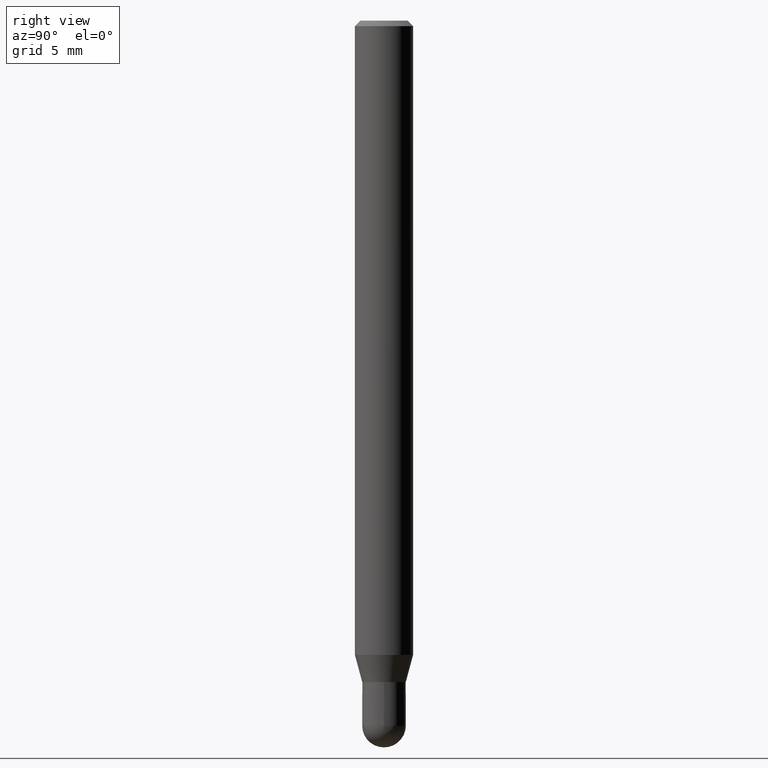
[diagram: clean part render]
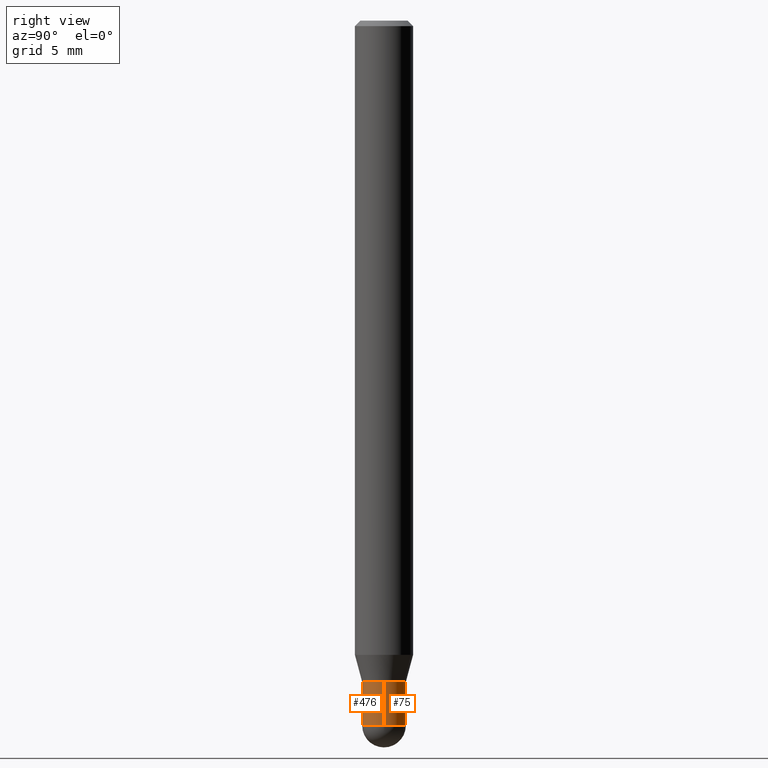
[diagram: same view with one multi-face feature highlighted, each face labeled with its STEP entity id]
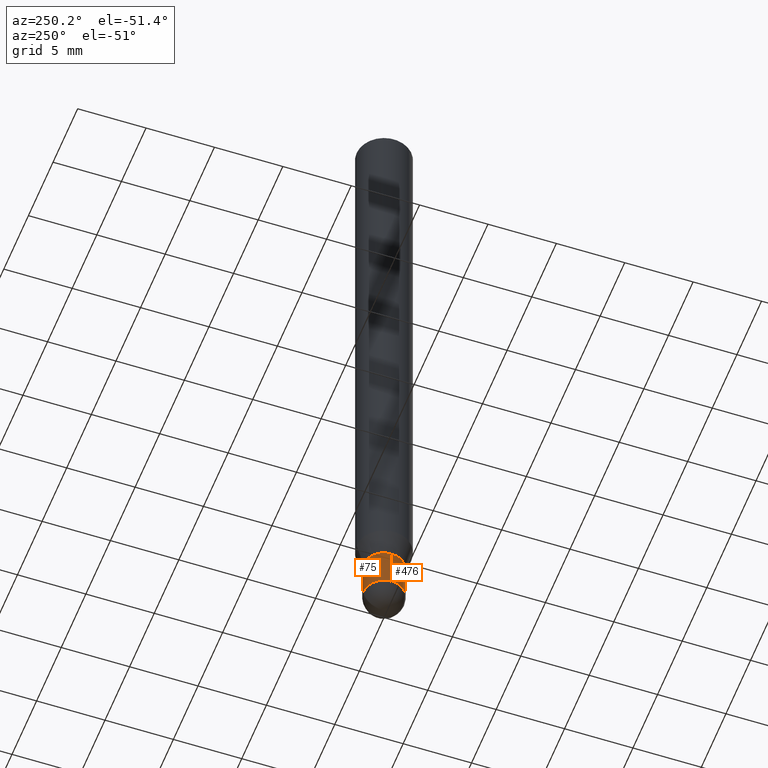
[diagram: same view with one multi-face feature highlighted, each face labeled with its STEP entity id]
A machine part, right view. The highlighted faces form ONE feature: a constant-radius fillet chain: 2 tangent blend faces with common blend radius 1.4999 mm. The faces share edges in the B-rep.
A second angle (auxiliary view) of the same feature is appended — it is thin or edge-on in the first view.
Their STEP definitions:
[1] entity #476 (Cylinder):
#3 = CIRCLE ( 'NONE', #26, 0.05904999999999999138 ) ;
#8 = DIRECTION ( 'NONE',  ( 1.000000000000000000, -6.982962677686266711E-15, 4.876176775795936353E-29 ) ) ;
#14 = CARTESIAN_POINT ( 'NONE',  ( 4.380568272519435501E-29, -6.254290522269726388E-15, -1.791300000000000114 ) ) ;
#19 = VECTOR ( 'NONE', #60, 39.37007874015748143 ) ;
#26 = AXIS2_PLACEMENT_3D ( 'NONE', #512, #148, #471 ) ;
#44 = ORIENTED_EDGE ( 'NONE', *, *, #72, .T. ) ;
#58 = ORIENTED_EDGE ( 'NONE', *, *, #301, .T. ) ;
#60 = DIRECTION ( 'NONE',  ( -2.445468806185136877E-29, 3.491481338843145188E-15, 1.000000000000000000 ) ) ;
#64 = LINE ( 'NONE', #265, #19 ) ;
#65 = VERTEX_POINT ( 'NONE', #422 ) ;
#72 = EDGE_CURVE ( 'NONE', #318, #394, #389, .T. ) ;
#85 = ORIENTED_EDGE ( 'NONE', *, *, #188, .F. ) ;
#86 = EDGE_LOOP ( 'NONE', ( #478, #58, #44, #164, #85 ) ) ;
#95 = DIRECTION ( 'NONE',  ( 1.000000000000000000, -6.982962677686273810E-15, 0.000000000000000000 ) ) ;
#104 = AXIS2_PLACEMENT_3D ( 'NONE', #162, #283, #8 ) ;
#110 = CARTESIAN_POINT ( 'NONE',  ( -4.195754854662919641E-16, -0.05905000000000660415, -1.909449999999999870 ) ) ;
#148 = DIRECTION ( 'NONE',  ( -2.445468806185136597E-29, 3.491481338843145583E-15, 1.000000000000000000 ) ) ;
#149 = CIRCLE ( 'NONE', #338, 0.05904999999999999832 ) ;
#152 = CARTESIAN_POINT ( 'NONE',  ( -0.05904999999999999832, -6.040974296895546811E-15, -1.791300000000000114 ) ) ;
#162 = CARTESIAN_POINT ( 'NONE',  ( 0.000000000000000000, 0.000000000000000000, 0.000000000000000000 ) ) ;
#164 = ORIENTED_EDGE ( 'NONE', *, *, #404, .T. ) ;
#168 = EDGE_CURVE ( 'NONE', #65, #337, #64, .T. ) ;
#175 = DIRECTION ( 'NONE',  ( -2.445468806185136597E-29, 3.491481338843145583E-15, 1.000000000000000000 ) ) ;
#188 = EDGE_CURVE ( 'NONE', #337, #357, #149, .T. ) ;
#226 = CARTESIAN_POINT ( 'NONE',  ( 0.05904999999999999832, -4.123439461173740327E-16, 2.879382386107500220E-30 ) ) ;
#240 = CYLINDRICAL_SURFACE ( 'NONE', #104, 0.05904999999999999832 ) ;
#265 = CARTESIAN_POINT ( 'NONE',  ( -0.05904999999999999832, 4.195754854663391478E-16, -2.904631170795521892E-30 ) ) ;
#267 = LINE ( 'NONE', #226, #506 ) ;
#283 = DIRECTION ( 'NONE',  ( -2.445468806185136597E-29, 3.491481338843145583E-15, 1.000000000000000000 ) ) ;
#292 = CARTESIAN_POINT ( 'NONE',  ( 4.669500411970209334E-29, -6.666809042454044642E-15, -1.909450000000000092 ) ) ;
#301 = EDGE_CURVE ( 'NONE', #65, #318, #3, .T. ) ;
#303 = CARTESIAN_POINT ( 'NONE',  ( 0.05904999999999999138, -6.872893728479260435E-15, -1.909450000000000092 ) ) ;
#317 = FACE_OUTER_BOUND ( 'NONE', #86, .T. ) ;
#318 = VERTEX_POINT ( 'NONE', #110 ) ;
#337 = VERTEX_POINT ( 'NONE', #152 ) ;
#338 = AXIS2_PLACEMENT_3D ( 'NONE', #14, #175, #490 ) ;
#357 = VERTEX_POINT ( 'NONE', #427 ) ;
#374 = DIRECTION ( 'NONE',  ( -2.445468806185136597E-29, 3.491481338843145583E-15, 1.000000000000000000 ) ) ;
#387 = DIRECTION ( 'NONE',  ( -2.445468806185136877E-29, 3.491481338843145188E-15, 1.000000000000000000 ) ) ;
#389 = CIRCLE ( 'NONE', #418, 0.05904999999999999138 ) ;
#394 = VERTEX_POINT ( 'NONE', #303 ) ;
#404 = EDGE_CURVE ( 'NONE', #394, #357, #267, .T. ) ;
#418 = AXIS2_PLACEMENT_3D ( 'NONE', #292, #374, #95 ) ;
#422 = CARTESIAN_POINT ( 'NONE',  ( -0.05904999999999999138, -6.040974296895546811E-15, -1.909450000000000092 ) ) ;
#427 = CARTESIAN_POINT ( 'NONE',  ( 0.05904999999999999832, -6.666634468387101308E-15, -1.791300000000000114 ) ) ;
#471 = DIRECTION ( 'NONE',  ( 1.000000000000000000, -6.982962677686273810E-15, 0.000000000000000000 ) ) ;
#476 = ADVANCED_FACE ( 'NONE', ( #317 ), #240, .T. ) ;
#478 = ORIENTED_EDGE ( 'NONE', *, *, #168, .F. ) ;
#490 = DIRECTION ( 'NONE',  ( 1.000000000000000000, -6.982962677686273021E-15, 0.000000000000000000 ) ) ;
#506 = VECTOR ( 'NONE', #387, 39.37007874015748143 ) ;
#512 = CARTESIAN_POINT ( 'NONE',  ( 4.669500411970209334E-29, -6.666809042454044642E-15, -1.909450000000000092 ) ) ;
[2] entity #75 (Cylinder):
#12 = CARTESIAN_POINT ( 'NONE',  ( 0.000000000000000000, 0.000000000000000000, 0.000000000000000000 ) ) ;
#19 = VECTOR ( 'NONE', #60, 39.37007874015748143 ) ;
#55 = DIRECTION ( 'NONE',  ( -2.445468806185136597E-29, 3.491481338843145583E-15, 1.000000000000000000 ) ) ;
#59 = EDGE_CURVE ( 'NONE', #243, #65, #268, .T. ) ;
#60 = DIRECTION ( 'NONE',  ( -2.445468806185136877E-29, 3.491481338843145188E-15, 1.000000000000000000 ) ) ;
#64 = LINE ( 'NONE', #265, #19 ) ;
#65 = VERTEX_POINT ( 'NONE', #422 ) ;
#75 = ADVANCED_FACE ( 'NONE', ( #367 ), #496, .T. ) ;
#76 = AXIS2_PLACEMENT_3D ( 'NONE', #464, #93, #107 ) ;
#93 = DIRECTION ( 'NONE',  ( -2.445468806185136597E-29, 3.491481338843145583E-15, 1.000000000000000000 ) ) ;
#97 = AXIS2_PLACEMENT_3D ( 'NONE', #346, #383, #113 ) ;
#107 = DIRECTION ( 'NONE',  ( 1.000000000000000000, -6.982962677686273810E-15, 0.000000000000000000 ) ) ;
#113 = DIRECTION ( 'NONE',  ( 1.000000000000000000, -6.982962677686273810E-15, 0.000000000000000000 ) ) ;
#152 = CARTESIAN_POINT ( 'NONE',  ( -0.05904999999999999832, -6.040974296895546811E-15, -1.791300000000000114 ) ) ;
#155 = ORIENTED_EDGE ( 'NONE', *, *, #176, .F. ) ;
#168 = EDGE_CURVE ( 'NONE', #65, #337, #64, .T. ) ;
#176 = EDGE_CURVE ( 'NONE', #357, #337, #500, .T. ) ;
#184 = AXIS2_PLACEMENT_3D ( 'NONE', #285, #55, #369 ) ;
#191 = CIRCLE ( 'NONE', #97, 0.05904999999999999138 ) ;
#203 = ORIENTED_EDGE ( 'NONE', *, *, #404, .F. ) ;
#221 = AXIS2_PLACEMENT_3D ( 'NONE', #12, #403, #333 ) ;
#226 = CARTESIAN_POINT ( 'NONE',  ( 0.05904999999999999832, -4.123439461173740327E-16, 2.879382386107500220E-30 ) ) ;
#243 = VERTEX_POINT ( 'NONE', #433 ) ;
#250 = EDGE_LOOP ( 'NONE', ( #276, #399, #155, #203, #437 ) ) ;
#265 = CARTESIAN_POINT ( 'NONE',  ( -0.05904999999999999832, 4.195754854663391478E-16, -2.904631170795521892E-30 ) ) ;
#267 = LINE ( 'NONE', #226, #506 ) ;
#268 = CIRCLE ( 'NONE', #76, 0.05904999999999999138 ) ;
#270 = EDGE_CURVE ( 'NONE', #394, #243, #191, .T. ) ;
#276 = ORIENTED_EDGE ( 'NONE', *, *, #59, .T. ) ;
#285 = CARTESIAN_POINT ( 'NONE',  ( 4.380568272519435501E-29, -6.254290522269726388E-15, -1.791300000000000114 ) ) ;
#303 = CARTESIAN_POINT ( 'NONE',  ( 0.05904999999999999138, -6.872893728479260435E-15, -1.909450000000000092 ) ) ;
#333 = DIRECTION ( 'NONE',  ( 1.000000000000000000, -6.982962677686266711E-15, 4.876176775795936353E-29 ) ) ;
#337 = VERTEX_POINT ( 'NONE', #152 ) ;
#346 = CARTESIAN_POINT ( 'NONE',  ( 4.669500411970209334E-29, -6.666809042454044642E-15, -1.909450000000000092 ) ) ;
#357 = VERTEX_POINT ( 'NONE', #427 ) ;
#367 = FACE_OUTER_BOUND ( 'NONE', #250, .T. ) ;
#369 = DIRECTION ( 'NONE',  ( 1.000000000000000000, -6.982962677686273021E-15, 0.000000000000000000 ) ) ;
#383 = DIRECTION ( 'NONE',  ( -2.445468806185136597E-29, 3.491481338843145583E-15, 1.000000000000000000 ) ) ;
#387 = DIRECTION ( 'NONE',  ( -2.445468806185136877E-29, 3.491481338843145188E-15, 1.000000000000000000 ) ) ;
#394 = VERTEX_POINT ( 'NONE', #303 ) ;
#399 = ORIENTED_EDGE ( 'NONE', *, *, #168, .T. ) ;
#403 = DIRECTION ( 'NONE',  ( -2.445468806185136597E-29, 3.491481338843145583E-15, 1.000000000000000000 ) ) ;
#404 = EDGE_CURVE ( 'NONE', #394, #357, #267, .T. ) ;
#422 = CARTESIAN_POINT ( 'NONE',  ( -0.05904999999999999138, -6.040974296895546811E-15, -1.909450000000000092 ) ) ;
#427 = CARTESIAN_POINT ( 'NONE',  ( 0.05904999999999999832, -6.666634468387101308E-15, -1.791300000000000114 ) ) ;
#433 = CARTESIAN_POINT ( 'NONE',  ( 4.123439461174201318E-16, 0.05904999999999325372, -1.909450000000000314 ) ) ;
#437 = ORIENTED_EDGE ( 'NONE', *, *, #270, .T. ) ;
#464 = CARTESIAN_POINT ( 'NONE',  ( 4.669500411970209334E-29, -6.666809042454044642E-15, -1.909450000000000092 ) ) ;
#496 = CYLINDRICAL_SURFACE ( 'NONE', #221, 0.05904999999999999832 ) ;
#500 = CIRCLE ( 'NONE', #184, 0.05904999999999999832 ) ;
#506 = VECTOR ( 'NONE', #387, 39.37007874015748143 ) ;